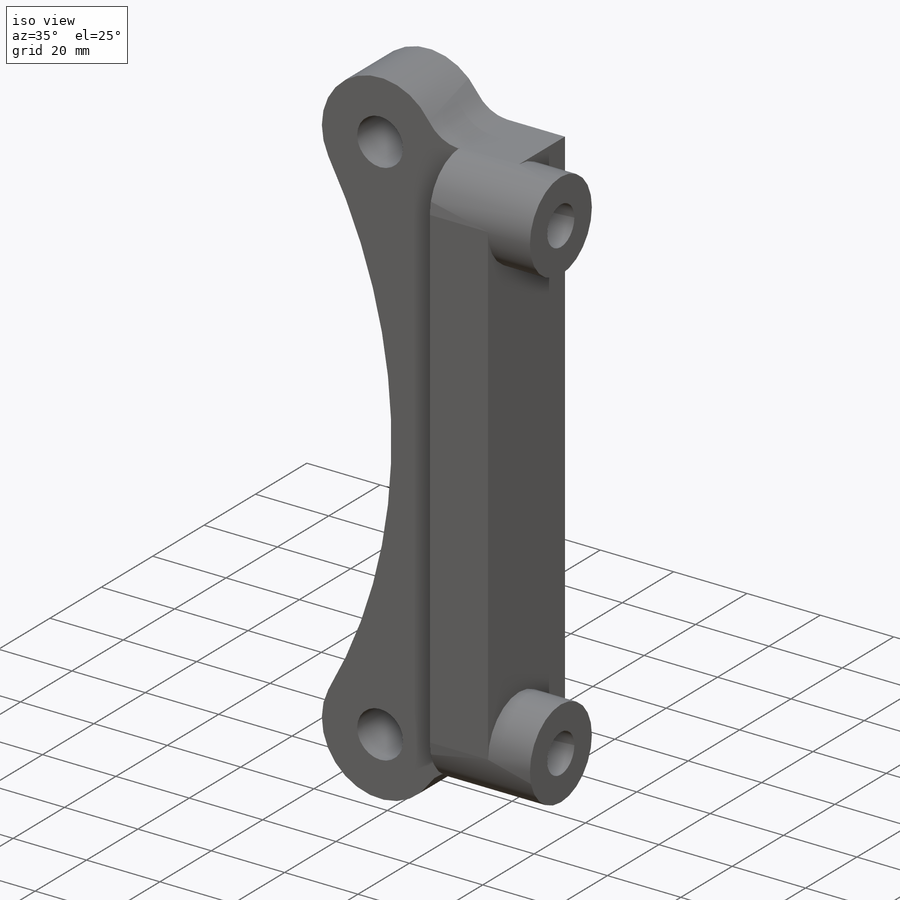
[diagram: iso view]
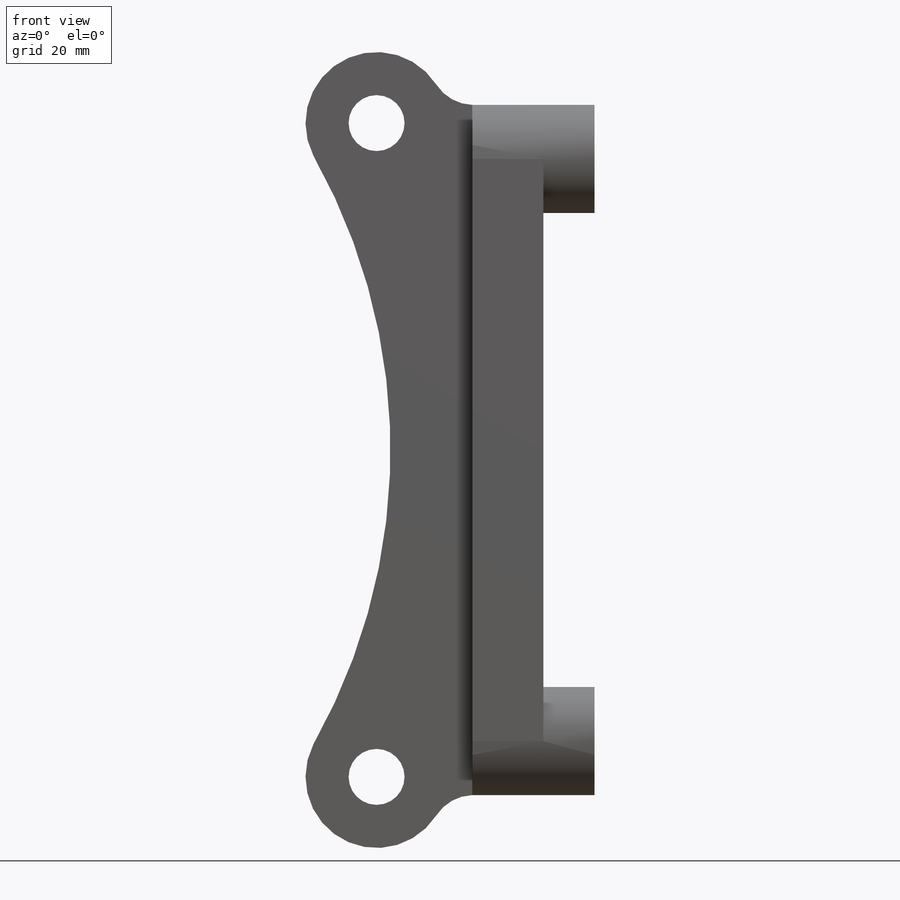
[diagram: front view]
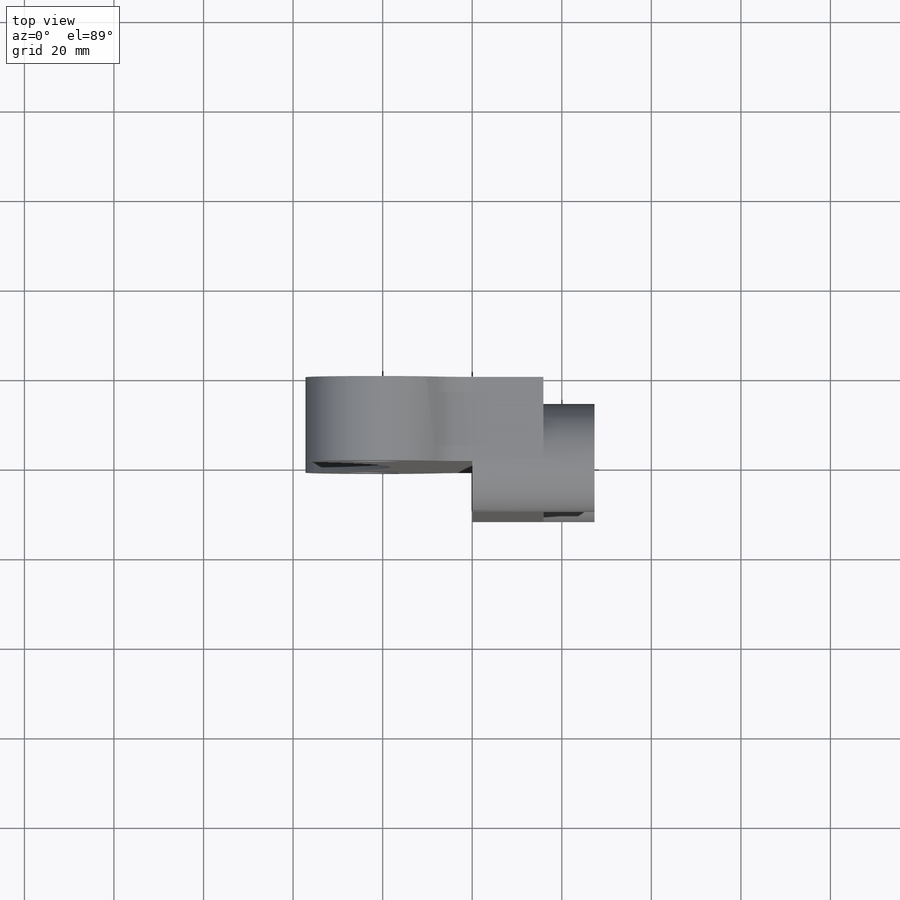
[diagram: top view]
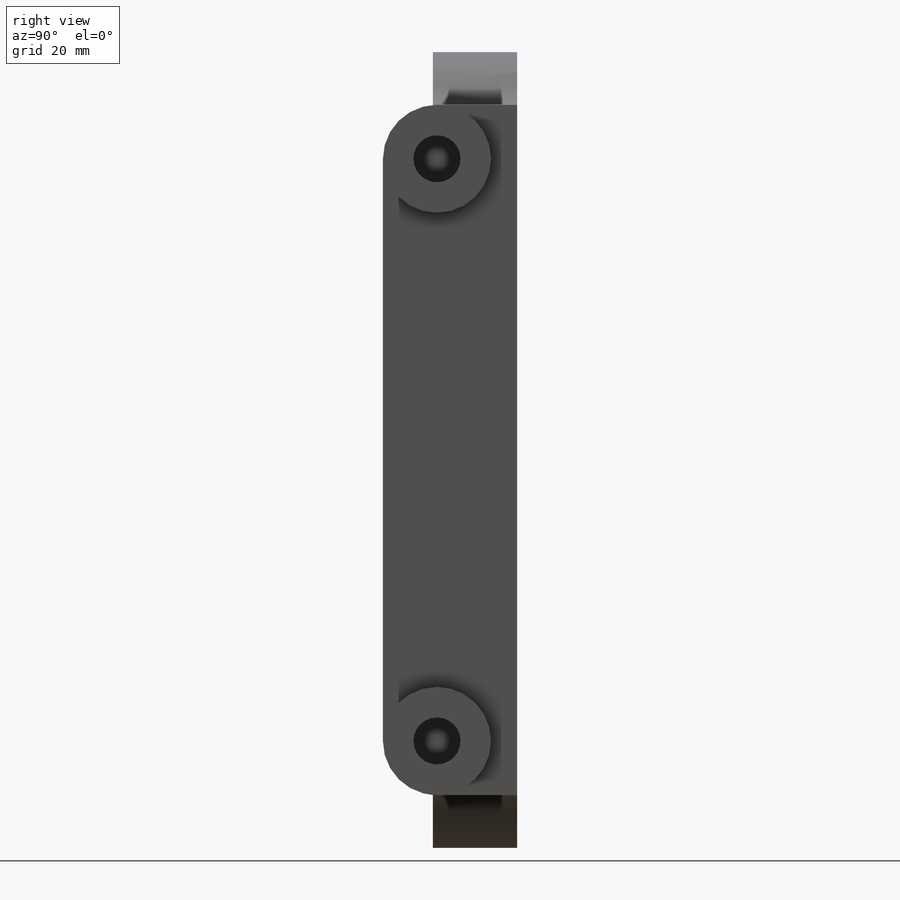
[diagram: right view]
SOLIDWORKS PART (.sldprt)
format: sldprt  version: not decoded by parser v0  size: 1,449,472 bytes
history: native  units: mm
features: sketch x5, extrude x3, mirror x2, cut_extrude x2, material x1 + 2 further entries (+15 scaffold rows collapsed)
feature tree (30):
  scaffold x15  (default folders/planes/origin — collapsed)
  material  "7079 Alloy"
  "Detail Folder1"  RD3=48.6664mm RD1=0.889mm RD2=11.43mm
  "Design Table"
  sketch  "Sketch1"  dims[D1=17.907mm]
  extrude  "Extrude1"  Depth=15.875mm
  sketch  "Sketch2"  dims[D1=~11.708829mm]
  extrude  "Extrude2"  Depth=11.43mm
  mirror  "Mirror of Extrude 2"
  sketch  "Sketch4"  dims[c1.D1=2.54mm c2.D1=~138.695594deg]
  extrude  "Extrude4"  Depth=18.796mm
  sketch  "Sketch5"  dims[D1=~12.49934mm]
  cut_extrude  "Cut-Extrude1"  [1 undecoded]
  sketch  "Sketch7"  dims[D1=~5.299364mm]
  cut_extrude  "Cut-Extrude2"  Depth=25.4mm
  mirror  "Mirror1"
decode coverage: 9 of 12 modeling features carry decoded parameters; 2 rows unclassified (native names shown)
note: ~ marks probable driven/reference dimensions
note: 1 parameter value undecoded
note: suppression state not decoded; provenance and decode notes live in map.json
